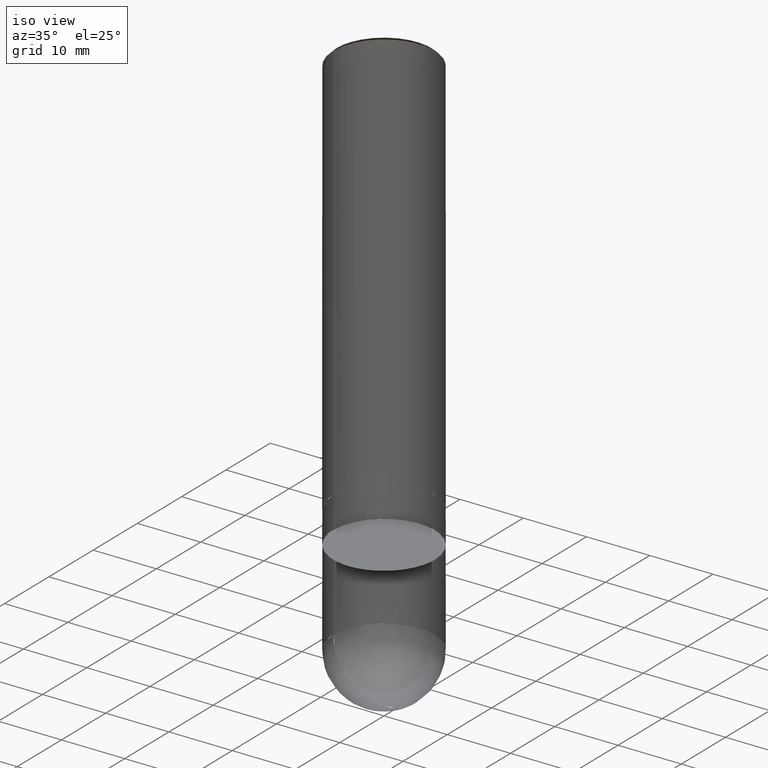
[diagram: clean part render]
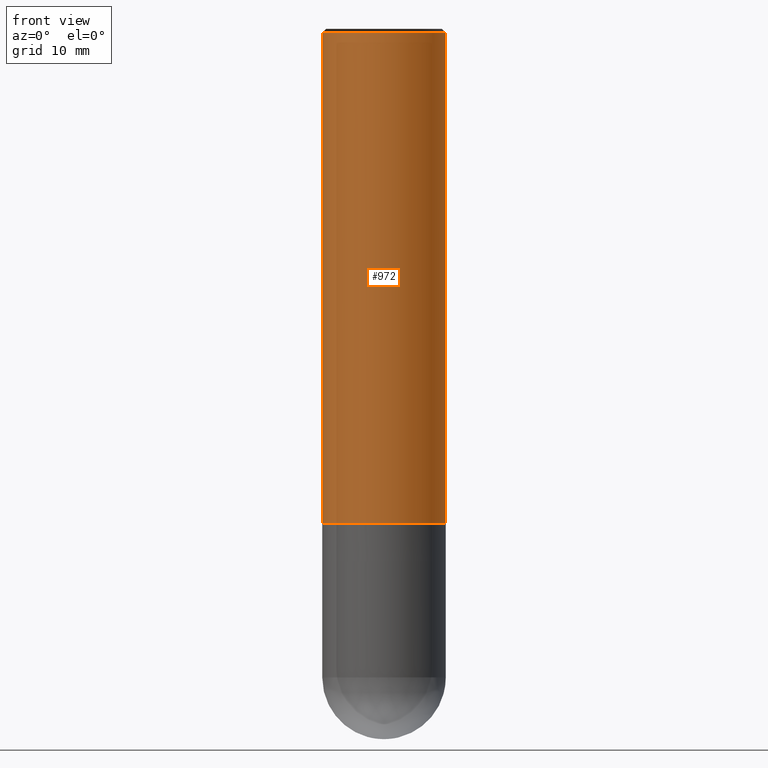
[diagram: tour spotlight — one face highlighted and labeled with its STEP entity id]
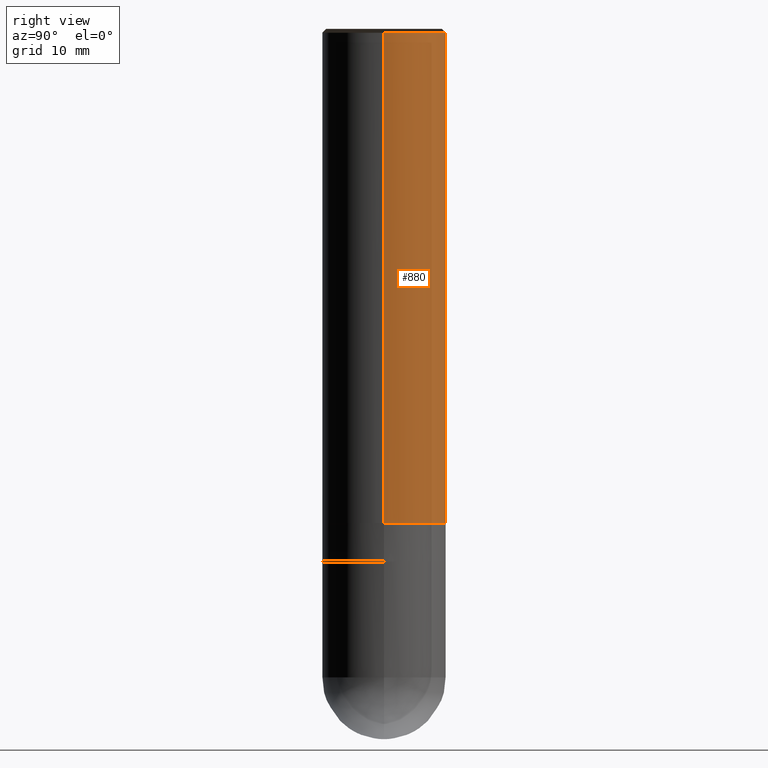
[diagram: tour spotlight — one face highlighted and labeled with its STEP entity id]
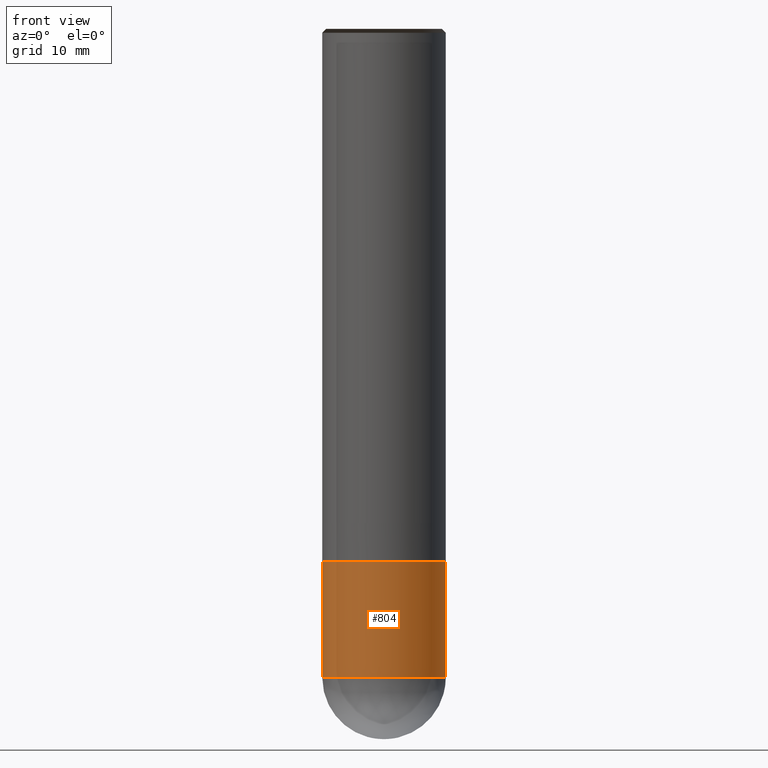
[diagram: tour spotlight — one face highlighted and labeled with its STEP entity id]
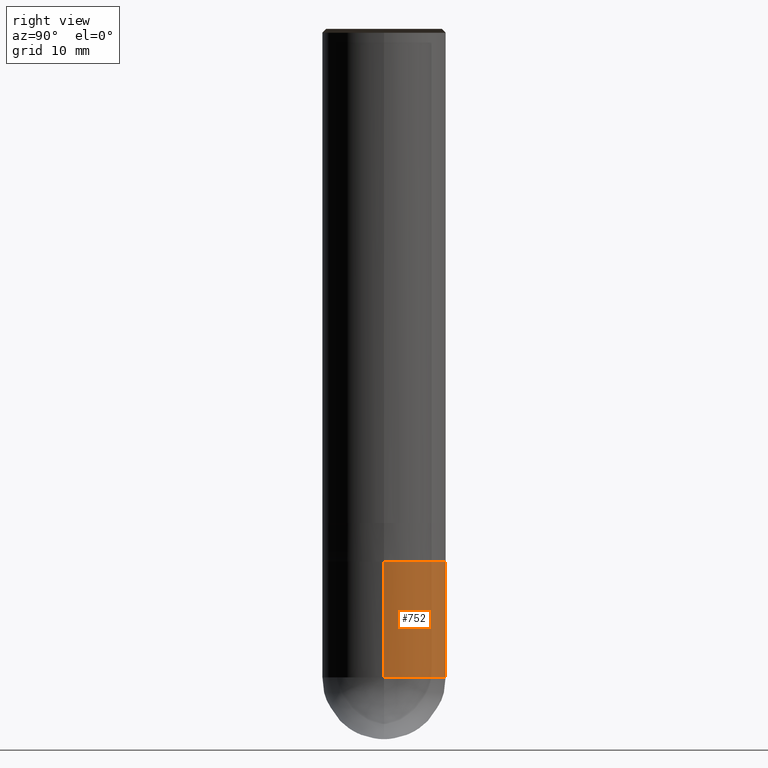
[diagram: tour spotlight — one face highlighted and labeled with its STEP entity id]
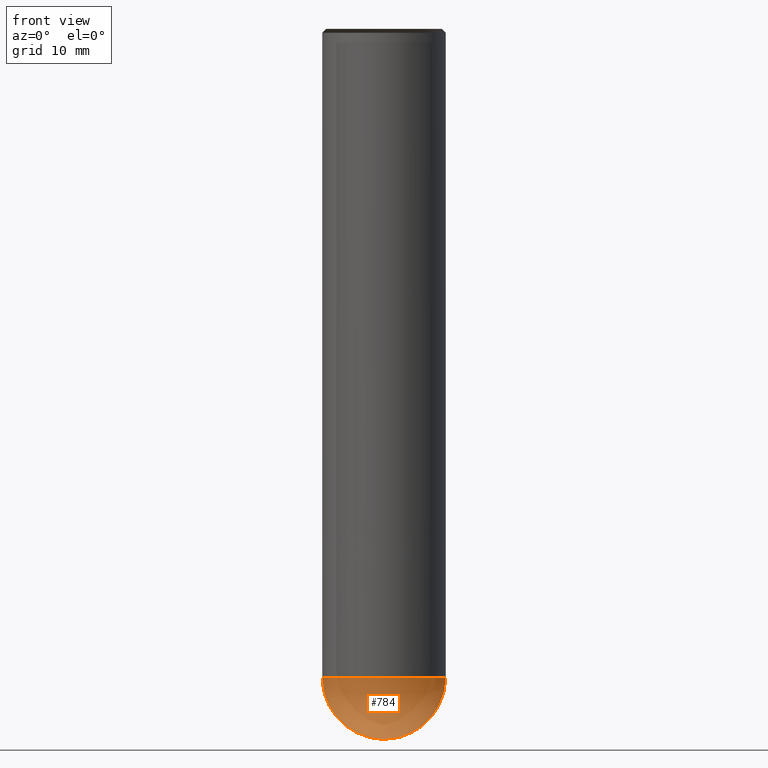
[diagram: tour spotlight — one face highlighted and labeled with its STEP entity id]
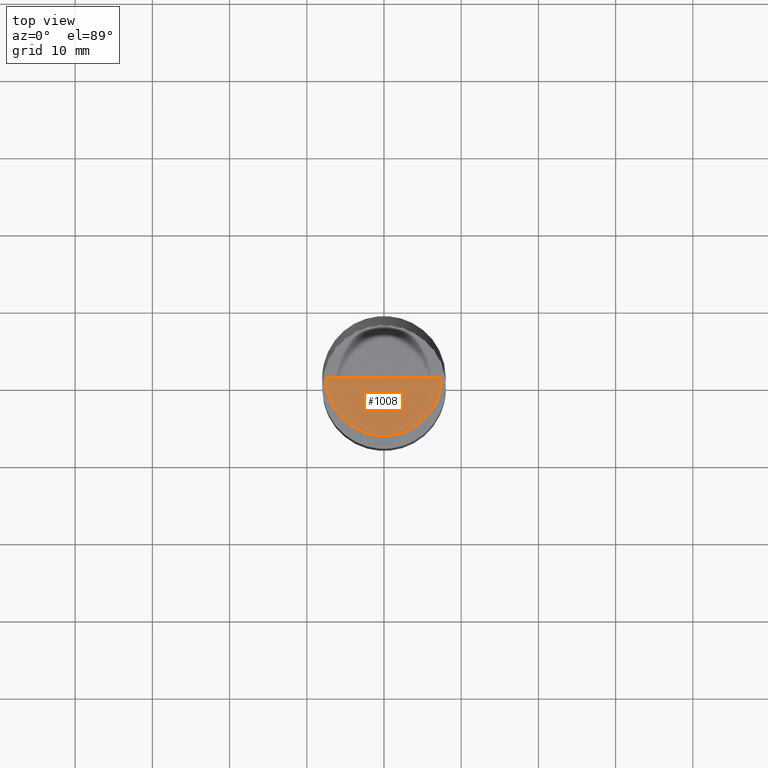
[diagram: tour spotlight — one face highlighted and labeled with its STEP entity id]
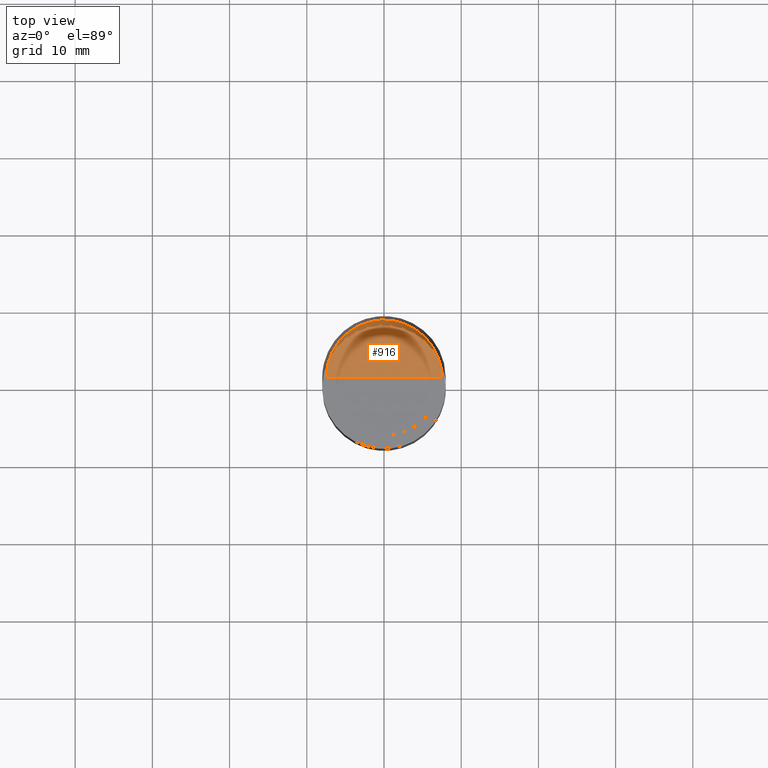
[diagram: tour spotlight — one face highlighted and labeled with its STEP entity id]
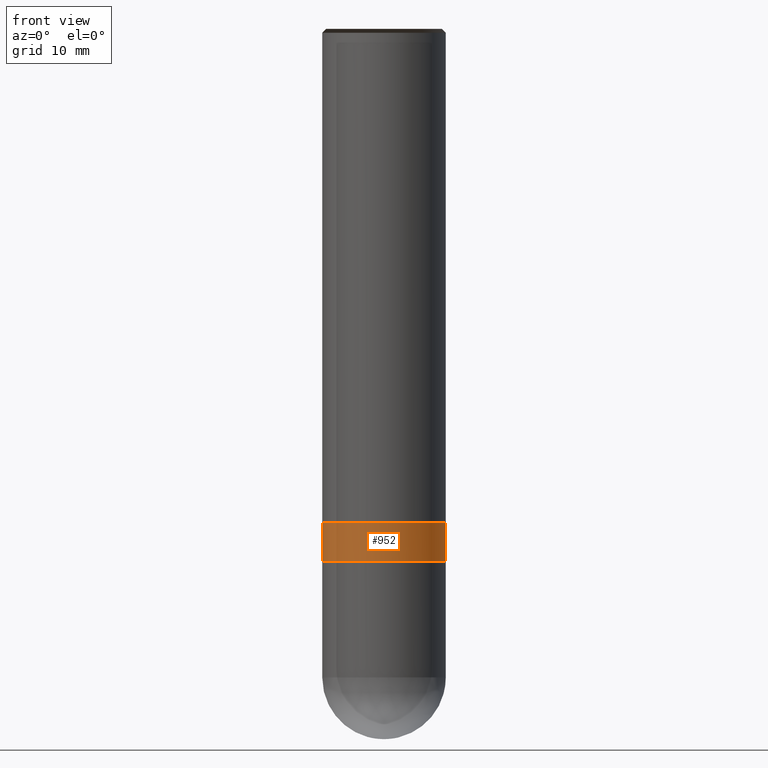
[diagram: tour spotlight — one face highlighted and labeled with its STEP entity id]
A machine part: a face-by-face anatomy tour. The part has 16 B-rep faces; the first image is the clean iso view, then the 8 largest visible faces are spotlighted one at a time (largest first), each with its STEP entity span.

Face 1 — front view, entity #972. In plain terms, the highlighted face is a freeform B-spline surface patch.
Definition (entity closure, byte-faithful):
#686=CARTESIAN_POINT('',(8.0,0.0,0.0));
#690=CARTESIAN_POINT('',(-8.0,0.0,0.0));
#691=CARTESIAN_POINT('',(8.0,0.0,63.5));
#695=CARTESIAN_POINT('',(-8.0,0.0,63.5));
#702=CARTESIAN_POINT('',(-8.0,-8.0,0.0));
#703=CARTESIAN_POINT('',(0.0,-8.0,0.0));
#704=CARTESIAN_POINT('',(8.0,-8.0,0.0));
#705=CARTESIAN_POINT('',(-8.0,-8.0,63.5));
#706=CARTESIAN_POINT('',(0.0,-8.0,63.5));
#707=CARTESIAN_POINT('',(8.0,-8.0,63.5));
#953=(
BOUNDED_SURFACE()
B_SPLINE_SURFACE(1,2,(
(#690,#702,#703,#704,#686),
(#695,#705,#706,#707,#691)
), .UNSPECIFIED.,.F.,.F.,.F.)
B_SPLINE_SURFACE_WITH_KNOTS((2,2),(3,2,3),(
0.0,1.0),(
0.0,0.5,1.0), .UNSPECIFIED.)
GEOMETRIC_REPRESENTATION_ITEM()
RATIONAL_B_SPLINE_SURFACE(((1.0,0.707106781187,1.0,0.707106781187,1.0),
(1.0,0.707106781187,1.0,0.707106781187,1.0)
))
REPRESENTATION_ITEM('')
SURFACE()
);
#954=(
BOUNDED_CURVE()
B_SPLINE_CURVE(2,(#686,#704,#703,#702,#690),.UNSPECIFIED.,.F.,.F.)
B_SPLINE_CURVE_WITH_KNOTS((3,2,3),
(0.0,0.5,1.0),.UNSPECIFIED.)
CURVE()
GEOMETRIC_REPRESENTATION_ITEM()
RATIONAL_B_SPLINE_CURVE((1.0,0.707106781187,1.0,0.707106781187,1.0))
REPRESENTATION_ITEM('')
);
#955=(
BOUNDED_CURVE()
B_SPLINE_CURVE(1,(#690,#695),.UNSPECIFIED.,.F.,.F.)
B_SPLINE_CURVE_WITH_KNOTS((2,2),
(0.0,1.0),.UNSPECIFIED.)
CURVE()
GEOMETRIC_REPRESENTATION_ITEM()
RATIONAL_B_SPLINE_CURVE((1.0,1.0))
REPRESENTATION_ITEM('')
);
#956=(
BOUNDED_CURVE()
B_SPLINE_CURVE(2,(#695,#705,#706,#707,#691),.UNSPECIFIED.,.F.,.F.)
B_SPLINE_CURVE_WITH_KNOTS((3,2,3),
(0.0,0.5,1.0),.UNSPECIFIED.)
CURVE()
GEOMETRIC_REPRESENTATION_ITEM()
RATIONAL_B_SPLINE_CURVE((1.0,0.707106781187,1.0,0.707106781187,1.0))
REPRESENTATION_ITEM('')
);
#957=(
BOUNDED_CURVE()
B_SPLINE_CURVE(1,(#691,#686),.UNSPECIFIED.,.F.,.F.)
B_SPLINE_CURVE_WITH_KNOTS((2,2),
(0.0,1.0),.UNSPECIFIED.)
CURVE()
GEOMETRIC_REPRESENTATION_ITEM()
RATIONAL_B_SPLINE_CURVE((1.0,1.0))
REPRESENTATION_ITEM('')
);
#958=VERTEX_POINT('',#686);
#959=VERTEX_POINT('',#690);
#960=VERTEX_POINT('',#691);
#961=VERTEX_POINT('',#695);
#962=EDGE_CURVE('',#958,#959,#954,.T.);
#963=EDGE_CURVE('',#959,#961,#955,.T.);
#964=EDGE_CURVE('',#961,#960,#956,.T.);
#965=EDGE_CURVE('',#960,#958,#957,.T.);
#966=ORIENTED_EDGE('',*,*,#962,.T.);
#967=ORIENTED_EDGE('',*,*,#963,.T.);
#968=ORIENTED_EDGE('',*,*,#964,.T.);
#969=ORIENTED_EDGE('',*,*,#965,.T.);
#970=EDGE_LOOP('',(#966,#967,#968,#969));
#971=FACE_OUTER_BOUND('',#970,.T.);
#972=ADVANCED_FACE('',(#971),#953,.T.);

Face 2 — right view, entity #880. In plain terms, the highlighted face is a freeform B-spline surface patch.
Definition (entity closure, byte-faithful):
#686=CARTESIAN_POINT('',(8.0,0.0,0.0));
#687=CARTESIAN_POINT('',(8.0,8.0,0.0));
#688=CARTESIAN_POINT('',(0.0,8.0,0.0));
#689=CARTESIAN_POINT('',(-8.0,8.0,0.0));
#690=CARTESIAN_POINT('',(-8.0,0.0,0.0));
#691=CARTESIAN_POINT('',(8.0,0.0,63.5));
#692=CARTESIAN_POINT('',(8.0,8.0,63.5));
#693=CARTESIAN_POINT('',(0.0,8.0,63.5));
#694=CARTESIAN_POINT('',(-8.0,8.0,63.5));
#695=CARTESIAN_POINT('',(-8.0,0.0,63.5));
#861=(
BOUNDED_SURFACE()
B_SPLINE_SURFACE(1,2,(
(#686,#687,#688,#689,#690),
(#691,#692,#693,#694,#695)
), .UNSPECIFIED.,.F.,.F.,.F.)
B_SPLINE_SURFACE_WITH_KNOTS((2,2),(3,2,3),(
0.0,1.0),(
0.0,0.5,1.0), .UNSPECIFIED.)
GEOMETRIC_REPRESENTATION_ITEM()
RATIONAL_B_SPLINE_SURFACE(((1.0,0.707106781187,1.0,0.707106781187,1.0),
(1.0,0.707106781187,1.0,0.707106781187,1.0)
))
REPRESENTATION_ITEM('')
SURFACE()
);
#862=(
BOUNDED_CURVE()
B_SPLINE_CURVE(2,(#690,#689,#688,#687,#686),.UNSPECIFIED.,.F.,.F.)
B_SPLINE_CURVE_WITH_KNOTS((3,2,3),
(0.0,0.5,1.0),.UNSPECIFIED.)
CURVE()
GEOMETRIC_REPRESENTATION_ITEM()
RATIONAL_B_SPLINE_CURVE((1.0,0.707106781187,1.0,0.707106781187,1.0))
REPRESENTATION_ITEM('')
);
#863=(
BOUNDED_CURVE()
B_SPLINE_CURVE(1,(#686,#691),.UNSPECIFIED.,.F.,.F.)
B_SPLINE_CURVE_WITH_KNOTS((2,2),
(0.0,1.0),.UNSPECIFIED.)
CURVE()
GEOMETRIC_REPRESENTATION_ITEM()
RATIONAL_B_SPLINE_CURVE((1.0,1.0))
REPRESENTATION_ITEM('')
);
#864=(
BOUNDED_CURVE()
B_SPLINE_CURVE(2,(#691,#692,#693,#694,#695),.UNSPECIFIED.,.F.,.F.)
B_SPLINE_CURVE_WITH_KNOTS((3,2,3),
(0.0,0.5,1.0),.UNSPECIFIED.)
CURVE()
GEOMETRIC_REPRESENTATION_ITEM()
RATIONAL_B_SPLINE_CURVE((1.0,0.707106781187,1.0,0.707106781187,1.0))
REPRESENTATION_ITEM('')
);
#865=(
BOUNDED_CURVE()
B_SPLINE_CURVE(1,(#695,#690),.UNSPECIFIED.,.F.,.F.)
B_SPLINE_CURVE_WITH_KNOTS((2,2),
(0.0,1.0),.UNSPECIFIED.)
CURVE()
GEOMETRIC_REPRESENTATION_ITEM()
RATIONAL_B_SPLINE_CURVE((1.0,1.0))
REPRESENTATION_ITEM('')
);
#866=VERTEX_POINT('',#686);
#867=VERTEX_POINT('',#690);
#868=VERTEX_POINT('',#691);
#869=VERTEX_POINT('',#695);
#870=EDGE_CURVE('',#867,#866,#862,.T.);
#871=EDGE_CURVE('',#866,#868,#863,.T.);
#872=EDGE_CURVE('',#868,#869,#864,.T.);
#873=EDGE_CURVE('',#869,#867,#865,.T.);
#874=ORIENTED_EDGE('',*,*,#870,.T.);
#875=ORIENTED_EDGE('',*,*,#871,.T.);
#876=ORIENTED_EDGE('',*,*,#872,.T.);
#877=ORIENTED_EDGE('',*,*,#873,.T.);
#878=EDGE_LOOP('',(#874,#875,#876,#877));
#879=FACE_OUTER_BOUND('',#878,.T.);
#880=ADVANCED_FACE('',(#879),#861,.T.);

Face 3 — front view, entity #804. In plain terms, the highlighted face is a freeform B-spline surface patch.
Definition (entity closure, byte-faithful):
#666=CARTESIAN_POINT('',(8.0,0.0,-20.0));
#670=CARTESIAN_POINT('',(-8.0,0.0,-20.0));
#671=CARTESIAN_POINT('',(8.0,0.0,-5.0));
#675=CARTESIAN_POINT('',(-8.0,0.0,-5.0));
#680=CARTESIAN_POINT('',(-8.0,-8.0,-20.0));
#681=CARTESIAN_POINT('',(0.0,-8.0,-20.0));
#682=CARTESIAN_POINT('',(8.0,-8.0,-20.0));
#683=CARTESIAN_POINT('',(-8.0,-8.0,-5.0));
#684=CARTESIAN_POINT('',(0.0,-8.0,-5.0));
#685=CARTESIAN_POINT('',(8.0,-8.0,-5.0));
#785=(
BOUNDED_SURFACE()
B_SPLINE_SURFACE(1,2,(
(#670,#680,#681,#682,#666),
(#675,#683,#684,#685,#671)
), .UNSPECIFIED.,.F.,.F.,.F.)
B_SPLINE_SURFACE_WITH_KNOTS((2,2),(3,2,3),(
0.0,1.0),(
0.0,0.5,1.0), .UNSPECIFIED.)
GEOMETRIC_REPRESENTATION_ITEM()
RATIONAL_B_SPLINE_SURFACE(((1.0,0.707106781187,1.0,0.707106781187,1.0),
(1.0,0.707106781187,1.0,0.707106781187,1.0)
))
REPRESENTATION_ITEM('')
SURFACE()
);
#786=(
BOUNDED_CURVE()
B_SPLINE_CURVE(2,(#666,#682,#681,#680,#670),.UNSPECIFIED.,.F.,.F.)
B_SPLINE_CURVE_WITH_KNOTS((3,2,3),
(0.0,0.5,1.0),.UNSPECIFIED.)
CURVE()
GEOMETRIC_REPRESENTATION_ITEM()
RATIONAL_B_SPLINE_CURVE((1.0,0.707106781187,1.0,0.707106781187,1.0))
REPRESENTATION_ITEM('')
);
#787=(
BOUNDED_CURVE()
B_SPLINE_CURVE(1,(#670,#675),.UNSPECIFIED.,.F.,.F.)
B_SPLINE_CURVE_WITH_KNOTS((2,2),
(0.0,1.0),.UNSPECIFIED.)
CURVE()
GEOMETRIC_REPRESENTATION_ITEM()
RATIONAL_B_SPLINE_CURVE((1.0,1.0))
REPRESENTATION_ITEM('')
);
#788=(
BOUNDED_CURVE()
B_SPLINE_CURVE(2,(#675,#683,#684,#685,#671),.UNSPECIFIED.,.F.,.F.)
B_SPLINE_CURVE_WITH_KNOTS((3,2,3),
(0.0,0.5,1.0),.UNSPECIFIED.)
CURVE()
GEOMETRIC_REPRESENTATION_ITEM()
RATIONAL_B_SPLINE_CURVE((1.0,0.707106781187,1.0,0.707106781187,1.0))
REPRESENTATION_ITEM('')
);
#789=(
BOUNDED_CURVE()
B_SPLINE_CURVE(1,(#671,#666),.UNSPECIFIED.,.F.,.F.)
B_SPLINE_CURVE_WITH_KNOTS((2,2),
(0.0,1.0),.UNSPECIFIED.)
CURVE()
GEOMETRIC_REPRESENTATION_ITEM()
RATIONAL_B_SPLINE_CURVE((1.0,1.0))
REPRESENTATION_ITEM('')
);
#790=VERTEX_POINT('',#666);
#791=VERTEX_POINT('',#670);
#792=VERTEX_POINT('',#671);
#793=VERTEX_POINT('',#675);
#794=EDGE_CURVE('',#790,#791,#786,.T.);
#795=EDGE_CURVE('',#791,#793,#787,.T.);
#796=EDGE_CURVE('',#793,#792,#788,.T.);
#797=EDGE_CURVE('',#792,#790,#789,.T.);
#798=ORIENTED_EDGE('',*,*,#794,.T.);
#799=ORIENTED_EDGE('',*,*,#795,.T.);
#800=ORIENTED_EDGE('',*,*,#796,.T.);
#801=ORIENTED_EDGE('',*,*,#797,.T.);
#802=EDGE_LOOP('',(#798,#799,#800,#801));
#803=FACE_OUTER_BOUND('',#802,.T.);
#804=ADVANCED_FACE('',(#803),#785,.T.);

Face 4 — right view, entity #752. In plain terms, the highlighted face is a freeform B-spline surface patch.
Definition (entity closure, byte-faithful):
#666=CARTESIAN_POINT('',(8.0,0.0,-20.0));
#667=CARTESIAN_POINT('',(8.0,8.0,-20.0));
#668=CARTESIAN_POINT('',(0.0,8.0,-20.0));
#669=CARTESIAN_POINT('',(-8.0,8.0,-20.0));
#670=CARTESIAN_POINT('',(-8.0,0.0,-20.0));
#671=CARTESIAN_POINT('',(8.0,0.0,-5.0));
#672=CARTESIAN_POINT('',(8.0,8.0,-5.0));
#673=CARTESIAN_POINT('',(0.0,8.0,-5.0));
#674=CARTESIAN_POINT('',(-8.0,8.0,-5.0));
#675=CARTESIAN_POINT('',(-8.0,0.0,-5.0));
#733=(
BOUNDED_SURFACE()
B_SPLINE_SURFACE(1,2,(
(#666,#667,#668,#669,#670),
(#671,#672,#673,#674,#675)
), .UNSPECIFIED.,.F.,.F.,.F.)
B_SPLINE_SURFACE_WITH_KNOTS((2,2),(3,2,3),(
0.0,1.0),(
0.0,0.5,1.0), .UNSPECIFIED.)
GEOMETRIC_REPRESENTATION_ITEM()
RATIONAL_B_SPLINE_SURFACE(((1.0,0.707106781187,1.0,0.707106781187,1.0),
(1.0,0.707106781187,1.0,0.707106781187,1.0)
))
REPRESENTATION_ITEM('')
SURFACE()
);
#734=(
BOUNDED_CURVE()
B_SPLINE_CURVE(2,(#670,#669,#668,#667,#666),.UNSPECIFIED.,.F.,.F.)
B_SPLINE_CURVE_WITH_KNOTS((3,2,3),
(0.0,0.5,1.0),.UNSPECIFIED.)
CURVE()
GEOMETRIC_REPRESENTATION_ITEM()
RATIONAL_B_SPLINE_CURVE((1.0,0.707106781187,1.0,0.707106781187,1.0))
REPRESENTATION_ITEM('')
);
#735=(
BOUNDED_CURVE()
B_SPLINE_CURVE(1,(#666,#671),.UNSPECIFIED.,.F.,.F.)
B_SPLINE_CURVE_WITH_KNOTS((2,2),
(0.0,1.0),.UNSPECIFIED.)
CURVE()
GEOMETRIC_REPRESENTATION_ITEM()
RATIONAL_B_SPLINE_CURVE((1.0,1.0))
REPRESENTATION_ITEM('')
);
#736=(
BOUNDED_CURVE()
B_SPLINE_CURVE(2,(#671,#672,#673,#674,#675),.UNSPECIFIED.,.F.,.F.)
B_SPLINE_CURVE_WITH_KNOTS((3,2,3),
(0.0,0.5,1.0),.UNSPECIFIED.)
CURVE()
GEOMETRIC_REPRESENTATION_ITEM()
RATIONAL_B_SPLINE_CURVE((1.0,0.707106781187,1.0,0.707106781187,1.0))
REPRESENTATION_ITEM('')
);
#737=(
BOUNDED_CURVE()
B_SPLINE_CURVE(1,(#675,#670),.UNSPECIFIED.,.F.,.F.)
B_SPLINE_CURVE_WITH_KNOTS((2,2),
(0.0,1.0),.UNSPECIFIED.)
CURVE()
GEOMETRIC_REPRESENTATION_ITEM()
RATIONAL_B_SPLINE_CURVE((1.0,1.0))
REPRESENTATION_ITEM('')
);
#738=VERTEX_POINT('',#666);
#739=VERTEX_POINT('',#670);
#740=VERTEX_POINT('',#671);
#741=VERTEX_POINT('',#675);
#742=EDGE_CURVE('',#739,#738,#734,.T.);
#743=EDGE_CURVE('',#738,#740,#735,.T.);
#744=EDGE_CURVE('',#740,#741,#736,.T.);
#745=EDGE_CURVE('',#741,#739,#737,.T.);
#746=ORIENTED_EDGE('',*,*,#742,.T.);
#747=ORIENTED_EDGE('',*,*,#743,.T.);
#748=ORIENTED_EDGE('',*,*,#744,.T.);
#749=ORIENTED_EDGE('',*,*,#745,.T.);
#750=EDGE_LOOP('',(#746,#747,#748,#749));
#751=FACE_OUTER_BOUND('',#750,.T.);
#752=ADVANCED_FACE('',(#751),#733,.T.);

Face 5 — front view, entity #784. In plain terms, the highlighted face is a freeform B-spline surface patch.
Definition (entity closure, byte-faithful):
#660=CARTESIAN_POINT('',(0.0,0.0,-28.0));
#661=CARTESIAN_POINT('',(8.0,0.0,-28.0));
#665=CARTESIAN_POINT('',(-8.0,0.0,-28.0));
#666=CARTESIAN_POINT('',(8.0,0.0,-20.0));
#670=CARTESIAN_POINT('',(-8.0,0.0,-20.0));
#677=CARTESIAN_POINT('',(-8.0,-8.0,-28.0));
#678=CARTESIAN_POINT('',(0.0,-8.0,-28.0));
#679=CARTESIAN_POINT('',(8.0,-8.0,-28.0));
#680=CARTESIAN_POINT('',(-8.0,-8.0,-20.0));
#681=CARTESIAN_POINT('',(0.0,-8.0,-20.0));
#682=CARTESIAN_POINT('',(8.0,-8.0,-20.0));
#769=(
BOUNDED_SURFACE()
B_SPLINE_SURFACE(2,2,(
(#660,#660,#660,#660,#660),
(#665,#677,#678,#679,#661),
(#670,#680,#681,#682,#666)
), .UNSPECIFIED.,.F.,.F.,.F.)
B_SPLINE_SURFACE_WITH_KNOTS((3,3),(3,2,3),(
0.0,1.0),(
0.0,0.5,1.0), .UNSPECIFIED.)
GEOMETRIC_REPRESENTATION_ITEM()
RATIONAL_B_SPLINE_SURFACE(((1.0,0.707106781187,1.0,0.707106781187,1.0),
(0.707106781187,0.5,0.707106781187,0.5,0.707106781187),
(1.0,0.707106781187,1.0,0.707106781187,1.0)
))
REPRESENTATION_ITEM('')
SURFACE()
);
#770=(
BOUNDED_CURVE()
B_SPLINE_CURVE(2,(#666,#661,#660),.UNSPECIFIED.,.F.,.F.)
B_SPLINE_CURVE_WITH_KNOTS((3,3),
(0.0,1.0),.UNSPECIFIED.)
CURVE()
GEOMETRIC_REPRESENTATION_ITEM()
RATIONAL_B_SPLINE_CURVE((1.0,0.707106781187,1.0))
REPRESENTATION_ITEM('')
);
#771=(
BOUNDED_CURVE()
B_SPLINE_CURVE(2,(#660,#665,#670),.UNSPECIFIED.,.F.,.F.)
B_SPLINE_CURVE_WITH_KNOTS((3,3),
(0.0,1.0),.UNSPECIFIED.)
CURVE()
GEOMETRIC_REPRESENTATION_ITEM()
RATIONAL_B_SPLINE_CURVE((1.0,0.707106781187,1.0))
REPRESENTATION_ITEM('')
);
#772=(
BOUNDED_CURVE()
B_SPLINE_CURVE(2,(#670,#680,#681,#682,#666),.UNSPECIFIED.,.F.,.F.)
B_SPLINE_CURVE_WITH_KNOTS((3,2,3),
(0.0,0.5,1.0),.UNSPECIFIED.)
CURVE()
GEOMETRIC_REPRESENTATION_ITEM()
RATIONAL_B_SPLINE_CURVE((1.0,0.707106781187,1.0,0.707106781187,1.0))
REPRESENTATION_ITEM('')
);
#773=VERTEX_POINT('',#660);
#774=VERTEX_POINT('',#666);
#775=VERTEX_POINT('',#670);
#776=EDGE_CURVE('',#774,#773,#770,.T.);
#777=EDGE_CURVE('',#773,#775,#771,.T.);
#778=EDGE_CURVE('',#775,#774,#772,.T.);
#779=ORIENTED_EDGE('',*,*,#776,.T.);
#780=ORIENTED_EDGE('',*,*,#777,.T.);
#781=ORIENTED_EDGE('',*,*,#778,.T.);
#782=EDGE_LOOP('',(#779,#780,#781));
#783=FACE_OUTER_BOUND('',#782,.T.);
#784=ADVANCED_FACE('',(#783),#769,.T.);

Face 6 — top view, entity #1008. In plain terms, the highlighted face is a freeform B-spline surface patch.
Definition (entity closure, byte-faithful):
#696=CARTESIAN_POINT('',(7.5,0.0,64.0));
#700=CARTESIAN_POINT('',(-7.5,0.0,64.0));
#701=CARTESIAN_POINT('',(0.0,0.0,64.0));
#708=CARTESIAN_POINT('',(-7.5,-7.5,64.0));
#709=CARTESIAN_POINT('',(0.0,-7.5,64.0));
#710=CARTESIAN_POINT('',(7.5,-7.5,64.0));
#993=(
BOUNDED_SURFACE()
B_SPLINE_SURFACE(1,2,(
(#700,#708,#709,#710,#696),
(#701,#701,#701,#701,#701)
), .UNSPECIFIED.,.F.,.F.,.F.)
B_SPLINE_SURFACE_WITH_KNOTS((2,2),(3,2,3),(
0.0,1.0),(
0.0,0.5,1.0), .UNSPECIFIED.)
GEOMETRIC_REPRESENTATION_ITEM()
RATIONAL_B_SPLINE_SURFACE(((1.0,0.707106781187,1.0,0.707106781187,1.0),
(1.0,0.707106781187,1.0,0.707106781187,1.0)
))
REPRESENTATION_ITEM('')
SURFACE()
);
#994=(
BOUNDED_CURVE()
B_SPLINE_CURVE(2,(#696,#710,#709,#708,#700),.UNSPECIFIED.,.F.,.F.)
B_SPLINE_CURVE_WITH_KNOTS((3,2,3),
(0.0,0.5,1.0),.UNSPECIFIED.)
CURVE()
GEOMETRIC_REPRESENTATION_ITEM()
RATIONAL_B_SPLINE_CURVE((1.0,0.707106781187,1.0,0.707106781187,1.0))
REPRESENTATION_ITEM('')
);
#995=(
BOUNDED_CURVE()
B_SPLINE_CURVE(1,(#700,#701),.UNSPECIFIED.,.F.,.F.)
B_SPLINE_CURVE_WITH_KNOTS((2,2),
(0.0,1.0),.UNSPECIFIED.)
CURVE()
GEOMETRIC_REPRESENTATION_ITEM()
RATIONAL_B_SPLINE_CURVE((1.0,1.0))
REPRESENTATION_ITEM('')
);
#996=(
BOUNDED_CURVE()
B_SPLINE_CURVE(1,(#701,#696),.UNSPECIFIED.,.F.,.F.)
B_SPLINE_CURVE_WITH_KNOTS((2,2),
(0.0,1.0),.UNSPECIFIED.)
CURVE()
GEOMETRIC_REPRESENTATION_ITEM()
RATIONAL_B_SPLINE_CURVE((1.0,1.0))
REPRESENTATION_ITEM('')
);
#997=VERTEX_POINT('',#696);
#998=VERTEX_POINT('',#700);
#999=VERTEX_POINT('',#701);
#1000=EDGE_CURVE('',#997,#998,#994,.T.);
#1001=EDGE_CURVE('',#998,#999,#995,.T.);
#1002=EDGE_CURVE('',#999,#997,#996,.T.);
#1003=ORIENTED_EDGE('',*,*,#1000,.T.);
#1004=ORIENTED_EDGE('',*,*,#1001,.T.);
#1005=ORIENTED_EDGE('',*,*,#1002,.T.);
#1006=EDGE_LOOP('',(#1003,#1004,#1005));
#1007=FACE_OUTER_BOUND('',#1006,.T.);
#1008=ADVANCED_FACE('',(#1007),#993,.T.);

Face 7 — top view, entity #916. In plain terms, the highlighted face is a freeform B-spline surface patch.
Definition (entity closure, byte-faithful):
#696=CARTESIAN_POINT('',(7.5,0.0,64.0));
#697=CARTESIAN_POINT('',(7.5,7.5,64.0));
#698=CARTESIAN_POINT('',(0.0,7.5,64.0));
#699=CARTESIAN_POINT('',(-7.5,7.5,64.0));
#700=CARTESIAN_POINT('',(-7.5,0.0,64.0));
#701=CARTESIAN_POINT('',(0.0,0.0,64.0));
#901=(
BOUNDED_SURFACE()
B_SPLINE_SURFACE(1,2,(
(#696,#697,#698,#699,#700),
(#701,#701,#701,#701,#701)
), .UNSPECIFIED.,.F.,.F.,.F.)
B_SPLINE_SURFACE_WITH_KNOTS((2,2),(3,2,3),(
0.0,1.0),(
0.0,0.5,1.0), .UNSPECIFIED.)
GEOMETRIC_REPRESENTATION_ITEM()
RATIONAL_B_SPLINE_SURFACE(((1.0,0.707106781187,1.0,0.707106781187,1.0),
(1.0,0.707106781187,1.0,0.707106781187,1.0)
))
REPRESENTATION_ITEM('')
SURFACE()
);
#902=(
BOUNDED_CURVE()
B_SPLINE_CURVE(2,(#700,#699,#698,#697,#696),.UNSPECIFIED.,.F.,.F.)
B_SPLINE_CURVE_WITH_KNOTS((3,2,3),
(0.0,0.5,1.0),.UNSPECIFIED.)
CURVE()
GEOMETRIC_REPRESENTATION_ITEM()
RATIONAL_B_SPLINE_CURVE((1.0,0.707106781187,1.0,0.707106781187,1.0))
REPRESENTATION_ITEM('')
);
#903=(
BOUNDED_CURVE()
B_SPLINE_CURVE(1,(#696,#701),.UNSPECIFIED.,.F.,.F.)
B_SPLINE_CURVE_WITH_KNOTS((2,2),
(0.0,1.0),.UNSPECIFIED.)
CURVE()
GEOMETRIC_REPRESENTATION_ITEM()
RATIONAL_B_SPLINE_CURVE((1.0,1.0))
REPRESENTATION_ITEM('')
);
#904=(
BOUNDED_CURVE()
B_SPLINE_CURVE(1,(#701,#700),.UNSPECIFIED.,.F.,.F.)
B_SPLINE_CURVE_WITH_KNOTS((2,2),
(0.0,1.0),.UNSPECIFIED.)
CURVE()
GEOMETRIC_REPRESENTATION_ITEM()
RATIONAL_B_SPLINE_CURVE((1.0,1.0))
REPRESENTATION_ITEM('')
);
#905=VERTEX_POINT('',#696);
#906=VERTEX_POINT('',#700);
#907=VERTEX_POINT('',#701);
#908=EDGE_CURVE('',#906,#905,#902,.T.);
#909=EDGE_CURVE('',#905,#907,#903,.T.);
#910=EDGE_CURVE('',#907,#906,#904,.T.);
#911=ORIENTED_EDGE('',*,*,#908,.T.);
#912=ORIENTED_EDGE('',*,*,#909,.T.);
#913=ORIENTED_EDGE('',*,*,#910,.T.);
#914=EDGE_LOOP('',(#911,#912,#913));
#915=FACE_OUTER_BOUND('',#914,.T.);
#916=ADVANCED_FACE('',(#915),#901,.T.);

Face 8 — front view, entity #952. In plain terms, the highlighted face is a freeform B-spline surface patch.
Definition (entity closure, byte-faithful):
#671=CARTESIAN_POINT('',(8.0,0.0,-5.0));
#675=CARTESIAN_POINT('',(-8.0,0.0,-5.0));
#683=CARTESIAN_POINT('',(-8.0,-8.0,-5.0));
#684=CARTESIAN_POINT('',(0.0,-8.0,-5.0));
#685=CARTESIAN_POINT('',(8.0,-8.0,-5.0));
#686=CARTESIAN_POINT('',(8.0,0.0,0.0));
#690=CARTESIAN_POINT('',(-8.0,0.0,0.0));
#702=CARTESIAN_POINT('',(-8.0,-8.0,0.0));
#703=CARTESIAN_POINT('',(0.0,-8.0,0.0));
#704=CARTESIAN_POINT('',(8.0,-8.0,0.0));
#933=(
BOUNDED_SURFACE()
B_SPLINE_SURFACE(1,2,(
(#675,#683,#684,#685,#671),
(#690,#702,#703,#704,#686)
), .UNSPECIFIED.,.F.,.F.,.F.)
B_SPLINE_SURFACE_WITH_KNOTS((2,2),(3,2,3),(
0.0,1.0),(
0.0,0.5,1.0), .UNSPECIFIED.)
GEOMETRIC_REPRESENTATION_ITEM()
RATIONAL_B_SPLINE_SURFACE(((1.0,0.707106781187,1.0,0.707106781187,1.0),
(1.0,0.707106781187,1.0,0.707106781187,1.0)
))
REPRESENTATION_ITEM('')
SURFACE()
);
#934=(
BOUNDED_CURVE()
B_SPLINE_CURVE(2,(#671,#685,#684,#683,#675),.UNSPECIFIED.,.F.,.F.)
B_SPLINE_CURVE_WITH_KNOTS((3,2,3),
(0.0,0.5,1.0),.UNSPECIFIED.)
CURVE()
GEOMETRIC_REPRESENTATION_ITEM()
RATIONAL_B_SPLINE_CURVE((1.0,0.707106781187,1.0,0.707106781187,1.0))
REPRESENTATION_ITEM('')
);
#935=(
BOUNDED_CURVE()
B_SPLINE_CURVE(1,(#675,#690),.UNSPECIFIED.,.F.,.F.)
B_SPLINE_CURVE_WITH_KNOTS((2,2),
(0.0,1.0),.UNSPECIFIED.)
CURVE()
GEOMETRIC_REPRESENTATION_ITEM()
RATIONAL_B_SPLINE_CURVE((1.0,1.0))
REPRESENTATION_ITEM('')
);
#936=(
BOUNDED_CURVE()
B_SPLINE_CURVE(2,(#690,#702,#703,#704,#686),.UNSPECIFIED.,.F.,.F.)
B_SPLINE_CURVE_WITH_KNOTS((3,2,3),
(0.0,0.5,1.0),.UNSPECIFIED.)
CURVE()
GEOMETRIC_REPRESENTATION_ITEM()
RATIONAL_B_SPLINE_CURVE((1.0,0.707106781187,1.0,0.707106781187,1.0))
REPRESENTATION_ITEM('')
);
#937=(
BOUNDED_CURVE()
B_SPLINE_CURVE(1,(#686,#671),.UNSPECIFIED.,.F.,.F.)
B_SPLINE_CURVE_WITH_KNOTS((2,2),
(0.0,1.0),.UNSPECIFIED.)
CURVE()
GEOMETRIC_REPRESENTATION_ITEM()
RATIONAL_B_SPLINE_CURVE((1.0,1.0))
REPRESENTATION_ITEM('')
);
#938=VERTEX_POINT('',#671);
#939=VERTEX_POINT('',#675);
#940=VERTEX_POINT('',#686);
#941=VERTEX_POINT('',#690);
#942=EDGE_CURVE('',#938,#939,#934,.T.);
#943=EDGE_CURVE('',#939,#941,#935,.T.);
#944=EDGE_CURVE('',#941,#940,#936,.T.);
#945=EDGE_CURVE('',#940,#938,#937,.T.);
#946=ORIENTED_EDGE('',*,*,#942,.T.);
#947=ORIENTED_EDGE('',*,*,#943,.T.);
#948=ORIENTED_EDGE('',*,*,#944,.T.);
#949=ORIENTED_EDGE('',*,*,#945,.T.);
#950=EDGE_LOOP('',(#946,#947,#948,#949));
#951=FACE_OUTER_BOUND('',#950,.T.);
#952=ADVANCED_FACE('',(#951),#933,.T.);